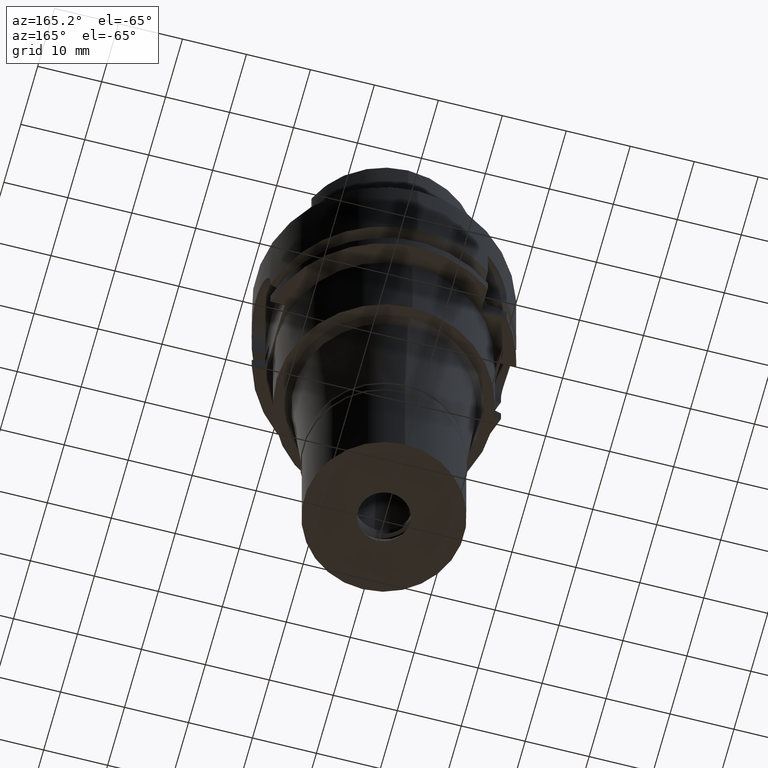
[diagram: clean part render]
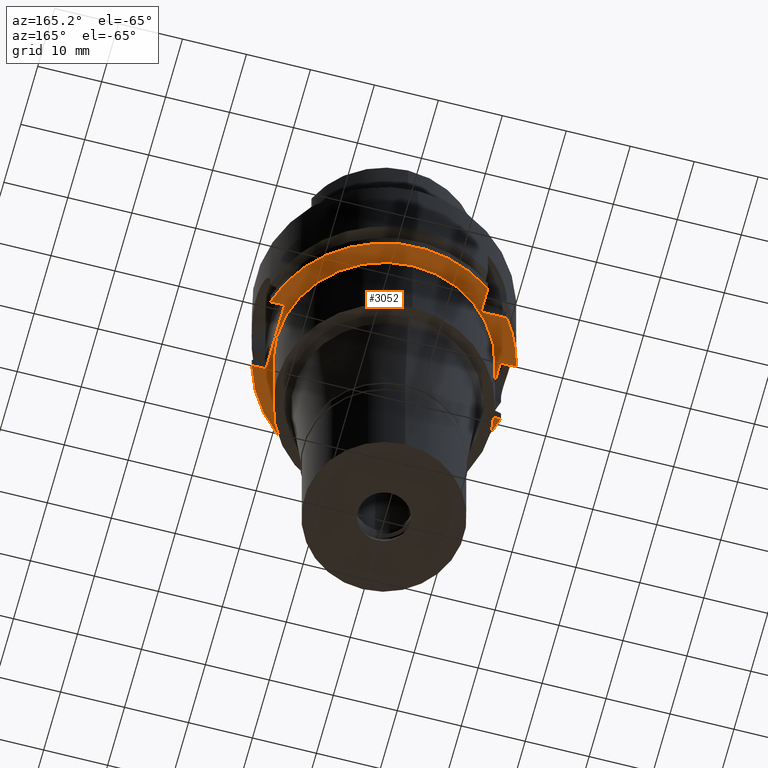
[diagram: same view with one face highlighted and labeled with its STEP entity id]
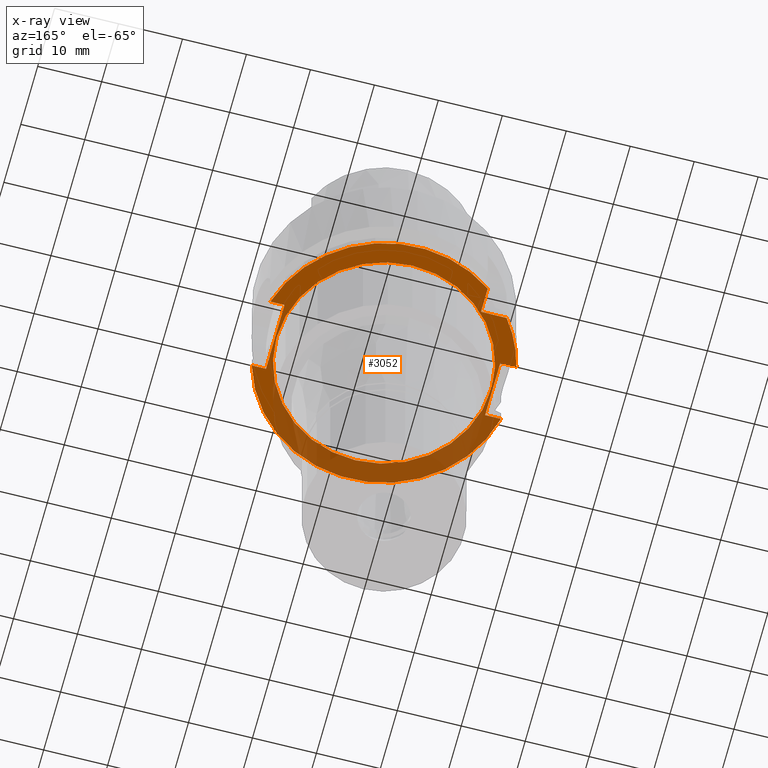
[diagram: x-ray of the same camera — body ghosted, the highlighted face saturated]
A machine part, auxiliary view. The second image highlights one B-rep face of the part: STEP entity #3052.
The next image is the same camera in x-ray: the body ghosted, the highlighted face saturated — about 43% of this face is hidden behind the body in this view.
In plain terms, the highlighted planar face has unit normal (0, 0, -1).
Its self-contained STEP definition (entity closure, byte-faithful):
#4 = EDGE_CURVE ( 'NONE', #5332, #3087, #5436, .T. ) ;
#12 = CARTESIAN_POINT ( 'NONE',  ( 0.0000000000000000000, 1.523950476858999865E-14, -20.00000000000000000 ) ) ;
#17 = DIRECTION ( 'NONE',  ( 0.0000000000000000000, 0.0000000000000000000, 1.000000000000000000 ) ) ;
#18 = DIRECTION ( 'NONE',  ( -1.000000000000000000, 1.449839272533000158E-13, 0.0000000000000000000 ) ) ;
#24 = CARTESIAN_POINT ( 'NONE',  ( 19.22888452303000051, -5.500000000000000000, -20.00000000000000000 ) ) ;
#39 = DIRECTION ( 'NONE',  ( 0.0000000000000000000, 0.0000000000000000000, 1.000000000000000000 ) ) ;
#132 = VERTEX_POINT ( 'NONE', #958 ) ;
#157 = CARTESIAN_POINT ( 'NONE',  ( -17.00000000000000000, 4.500000000000000000, -20.00000000000000000 ) ) ;
#185 = DIRECTION ( 'NONE',  ( 0.0000000000000000000, 0.0000000000000000000, -1.000000000000000000 ) ) ;
#297 = EDGE_CURVE ( 'NONE', #4736, #497, #737, .T. ) ;
#352 = CIRCLE ( 'NONE', #4577, 20.00000000000000000 ) ;
#394 = VERTEX_POINT ( 'NONE', #1191 ) ;
#454 = CARTESIAN_POINT ( 'NONE',  ( 17.00000000000000000, 5.500000000000000000, -20.00000000000000000 ) ) ;
#461 = AXIS2_PLACEMENT_3D ( 'NONE', #4651, #17, #1712 ) ;
#497 = VERTEX_POINT ( 'NONE', #4147 ) ;
#554 = VECTOR ( 'NONE', #4710, 1000.000000000000000 ) ;
#620 = VECTOR ( 'NONE', #2301, 1000.000000000000000 ) ;
#630 = AXIS2_PLACEMENT_3D ( 'NONE', #1513, #185, #3998 ) ;
#655 = AXIS2_PLACEMENT_3D ( 'NONE', #2046, #3315, #5003 ) ;
#737 = CIRCLE ( 'NONE', #655, 16.80000000000000071 ) ;
#774 = CARTESIAN_POINT ( 'NONE',  ( -12.00000000000000000, 12.00000000000000000, -20.00000000000000000 ) ) ;
#857 = VERTEX_POINT ( 'NONE', #5298 ) ;
#932 = ORIENTED_EDGE ( 'NONE', *, *, #1913, .F. ) ;
#935 = EDGE_CURVE ( 'NONE', #3650, #394, #1160, .T. ) ;
#958 = CARTESIAN_POINT ( 'NONE',  ( 17.00000000000000000, 5.500000000000000000, -20.00000000000000000 ) ) ;
#990 = VECTOR ( 'NONE', #4474, 1000.000000000000000 ) ;
#994 = VECTOR ( 'NONE', #1572, 1000.000000000000000 ) ;
#1074 = CARTESIAN_POINT ( 'NONE',  ( 19.22888452303000051, 5.500000000000000000, -20.00000000000000000 ) ) ;
#1160 = LINE ( 'NONE', #3804, #3475 ) ;
#1189 = ORIENTED_EDGE ( 'NONE', *, *, #5406, .T. ) ;
#1191 = CARTESIAN_POINT ( 'NONE',  ( -19.48717526991000071, -4.500000000000000000, -20.00000000000000000 ) ) ;
#1207 = ORIENTED_EDGE ( 'NONE', *, *, #3391, .T. ) ;
#1305 = DIRECTION ( 'NONE',  ( -1.000000000000000000, -1.449839272533000158E-13, 0.0000000000000000000 ) ) ;
#1308 = DIRECTION ( 'NONE',  ( -1.000000000000000000, 0.0000000000000000000, 0.0000000000000000000 ) ) ;
#1410 = EDGE_CURVE ( 'NONE', #3087, #4547, #352, .T. ) ;
#1413 = VERTEX_POINT ( 'NONE', #3402 ) ;
#1424 = AXIS2_PLACEMENT_3D ( 'NONE', #4280, #3474, #3383 ) ;
#1438 = ORIENTED_EDGE ( 'NONE', *, *, #2193, .T. ) ;
#1513 = CARTESIAN_POINT ( 'NONE',  ( 0.0000000000000000000, 0.0000000000000000000, -20.00000000000000000 ) ) ;
#1572 = DIRECTION ( 'NONE',  ( 0.0000000000000000000, 1.000000000000000000, 0.0000000000000000000 ) ) ;
#1656 = ORIENTED_EDGE ( 'NONE', *, *, #1410, .F. ) ;
#1712 = DIRECTION ( 'NONE',  ( 0.0000000000000000000, 1.000000000000000000, 0.0000000000000000000 ) ) ;
#1734 = DIRECTION ( 'NONE',  ( -0.8000000000000000444, 0.5999999999999999778, 0.0000000000000000000 ) ) ;
#1913 = EDGE_CURVE ( 'NONE', #394, #3615, #5364, .T. ) ;
#1955 = CARTESIAN_POINT ( 'NONE',  ( 19.22888452303000051, -5.500000000000000000, -20.00000000000000000 ) ) ;
#2019 = CARTESIAN_POINT ( 'NONE',  ( 0.0000000000000000000, 16.80000000000000071, -20.00000000000000000 ) ) ;
#2046 = CARTESIAN_POINT ( 'NONE',  ( 0.0000000000000000000, 1.523950476858999865E-14, -20.00000000000000000 ) ) ;
#2095 = ORIENTED_EDGE ( 'NONE', *, *, #4, .F. ) ;
#2193 = EDGE_CURVE ( 'NONE', #2728, #132, #3953, .T. ) ;
#2246 = ORIENTED_EDGE ( 'NONE', *, *, #4209, .T. ) ;
#2301 = DIRECTION ( 'NONE',  ( -1.000000000000000000, 2.231519443439000031E-14, 0.0000000000000000000 ) ) ;
#2371 = CARTESIAN_POINT ( 'NONE',  ( -16.00000000000000000, 12.00000000000000000, -20.00000000000000000 ) ) ;
#2509 = LINE ( 'NONE', #774, #994 ) ;
#2537 = LINE ( 'NONE', #24, #990 ) ;
#2728 = VERTEX_POINT ( 'NONE', #1074 ) ;
#2755 = CARTESIAN_POINT ( 'NONE',  ( 19.22888452303000051, 5.500000000000000000, -20.00000000000000000 ) ) ;
#2835 = VECTOR ( 'NONE', #1305, 1000.000000000000000 ) ;
#2983 = LINE ( 'NONE', #454, #4939 ) ;
#3013 = DIRECTION ( 'NONE',  ( 0.0000000000000000000, -1.000000000000000000, 0.0000000000000000000 ) ) ;
#3021 = CARTESIAN_POINT ( 'NONE',  ( -17.00000000000000000, 4.500000000000000000, -20.00000000000000000 ) ) ;
#3025 = PLANE ( 'NONE',  #630 ) ;
#3044 = ORIENTED_EDGE ( 'NONE', *, *, #4530, .F. ) ;
#3052 = ADVANCED_FACE ( 'NONE', ( #3469, #5065 ), #3025, .T. ) ;
#3087 = VERTEX_POINT ( 'NONE', #2371 ) ;
#3315 = DIRECTION ( 'NONE',  ( 0.0000000000000000000, 0.0000000000000000000, -1.000000000000000000 ) ) ;
#3334 = DIRECTION ( 'NONE',  ( 0.0000000000000000000, 0.0000000000000000000, 1.000000000000000000 ) ) ;
#3383 = DIRECTION ( 'NONE',  ( 0.0000000000000000000, -1.000000000000000000, 0.0000000000000000000 ) ) ;
#3391 = EDGE_CURVE ( 'NONE', #132, #1413, #2983, .T. ) ;
#3402 = CARTESIAN_POINT ( 'NONE',  ( 17.00000000000000000, -5.500000000000000000, -20.00000000000000000 ) ) ;
#3404 = LINE ( 'NONE', #3021, #554 ) ;
#3413 = ORIENTED_EDGE ( 'NONE', *, *, #4912, .F. ) ;
#3455 = CARTESIAN_POINT ( 'NONE',  ( -17.00000000000000000, 4.500000000000000000, -20.00000000000000000 ) ) ;
#3469 = FACE_OUTER_BOUND ( 'NONE', #3784, .T. ) ;
#3474 = DIRECTION ( 'NONE',  ( 0.0000000000000000000, 0.0000000000000000000, -1.000000000000000000 ) ) ;
#3475 = VECTOR ( 'NONE', #18, 1000.000000000000000 ) ;
#3593 = ORIENTED_EDGE ( 'NONE', *, *, #3598, .F. ) ;
#3598 = EDGE_CURVE ( 'NONE', #3615, #1413, #2537, .T. ) ;
#3615 = VERTEX_POINT ( 'NONE', #1955 ) ;
#3650 = VERTEX_POINT ( 'NONE', #5020 ) ;
#3784 = EDGE_LOOP ( 'NONE', ( #4178, #1438, #1207, #3593, #932, #4761, #3413, #1189, #1656, #2095, #2246 ) ) ;
#3804 = CARTESIAN_POINT ( 'NONE',  ( -17.00000000000000000, -4.500000000000000000, -20.00000000000000000 ) ) ;
#3864 = ORIENTED_EDGE ( 'NONE', *, *, #297, .F. ) ;
#3877 = EDGE_LOOP ( 'NONE', ( #3864, #3044 ) ) ;
#3953 = LINE ( 'NONE', #2755, #620 ) ;
#3998 = DIRECTION ( 'NONE',  ( 0.0000000000000000000, -1.000000000000000000, 0.0000000000000000000 ) ) ;
#4044 = CARTESIAN_POINT ( 'NONE',  ( -12.00000000000000000, 12.00000000000000000, -20.00000000000000000 ) ) ;
#4081 = VECTOR ( 'NONE', #1308, 1000.000000000000000 ) ;
#4147 = CARTESIAN_POINT ( 'NONE',  ( 0.0000000000000000000, -16.80000000000000071, -20.00000000000000000 ) ) ;
#4162 = EDGE_CURVE ( 'NONE', #2728, #857, #4595, .T. ) ;
#4178 = ORIENTED_EDGE ( 'NONE', *, *, #4162, .F. ) ;
#4209 = EDGE_CURVE ( 'NONE', #5332, #857, #2509, .T. ) ;
#4280 = CARTESIAN_POINT ( 'NONE',  ( 0.0000000000000000000, 1.523950476858999865E-14, -20.00000000000000000 ) ) ;
#4334 = CARTESIAN_POINT ( 'NONE',  ( -19.48717526991000071, 4.500000000000000000, -20.00000000000000000 ) ) ;
#4474 = DIRECTION ( 'NONE',  ( -1.000000000000000000, -2.470610812378999996E-14, 0.0000000000000000000 ) ) ;
#4530 = EDGE_CURVE ( 'NONE', #497, #4736, #4682, .T. ) ;
#4547 = VERTEX_POINT ( 'NONE', #4334 ) ;
#4577 = AXIS2_PLACEMENT_3D ( 'NONE', #12, #39, #1734 ) ;
#4595 = CIRCLE ( 'NONE', #461, 20.00000000000000000 ) ;
#4614 = CARTESIAN_POINT ( 'NONE',  ( 0.0000000000000000000, 1.523950476858999865E-14, -20.00000000000000000 ) ) ;
#4618 = CARTESIAN_POINT ( 'NONE',  ( -12.00000000000000000, 12.00000000000000000, -20.00000000000000000 ) ) ;
#4645 = DIRECTION ( 'NONE',  ( 0.0000000000000000000, -1.000000000000000000, 0.0000000000000000000 ) ) ;
#4651 = CARTESIAN_POINT ( 'NONE',  ( 0.0000000000000000000, 1.523950476858999865E-14, -20.00000000000000000 ) ) ;
#4682 = CIRCLE ( 'NONE', #1424, 16.80000000000000071 ) ;
#4710 = DIRECTION ( 'NONE',  ( 0.0000000000000000000, -1.000000000000000000, 0.0000000000000000000 ) ) ;
#4736 = VERTEX_POINT ( 'NONE', #2019 ) ;
#4752 = AXIS2_PLACEMENT_3D ( 'NONE', #4614, #3334, #3013 ) ;
#4761 = ORIENTED_EDGE ( 'NONE', *, *, #935, .F. ) ;
#4912 = EDGE_CURVE ( 'NONE', #5091, #3650, #3404, .T. ) ;
#4939 = VECTOR ( 'NONE', #4645, 1000.000000000000000 ) ;
#5003 = DIRECTION ( 'NONE',  ( 0.0000000000000000000, 1.000000000000000000, 0.0000000000000000000 ) ) ;
#5020 = CARTESIAN_POINT ( 'NONE',  ( -17.00000000000000000, -4.500000000000000000, -20.00000000000000000 ) ) ;
#5065 = FACE_BOUND ( 'NONE', #3877, .T. ) ;
#5078 = LINE ( 'NONE', #3455, #2835 ) ;
#5091 = VERTEX_POINT ( 'NONE', #157 ) ;
#5298 = CARTESIAN_POINT ( 'NONE',  ( -12.00000000000000000, 16.00000000000000000, -20.00000000000000000 ) ) ;
#5332 = VERTEX_POINT ( 'NONE', #4044 ) ;
#5364 = CIRCLE ( 'NONE', #4752, 20.00000000000000000 ) ;
#5406 = EDGE_CURVE ( 'NONE', #5091, #4547, #5078, .T. ) ;
#5436 = LINE ( 'NONE', #4618, #4081 ) ;